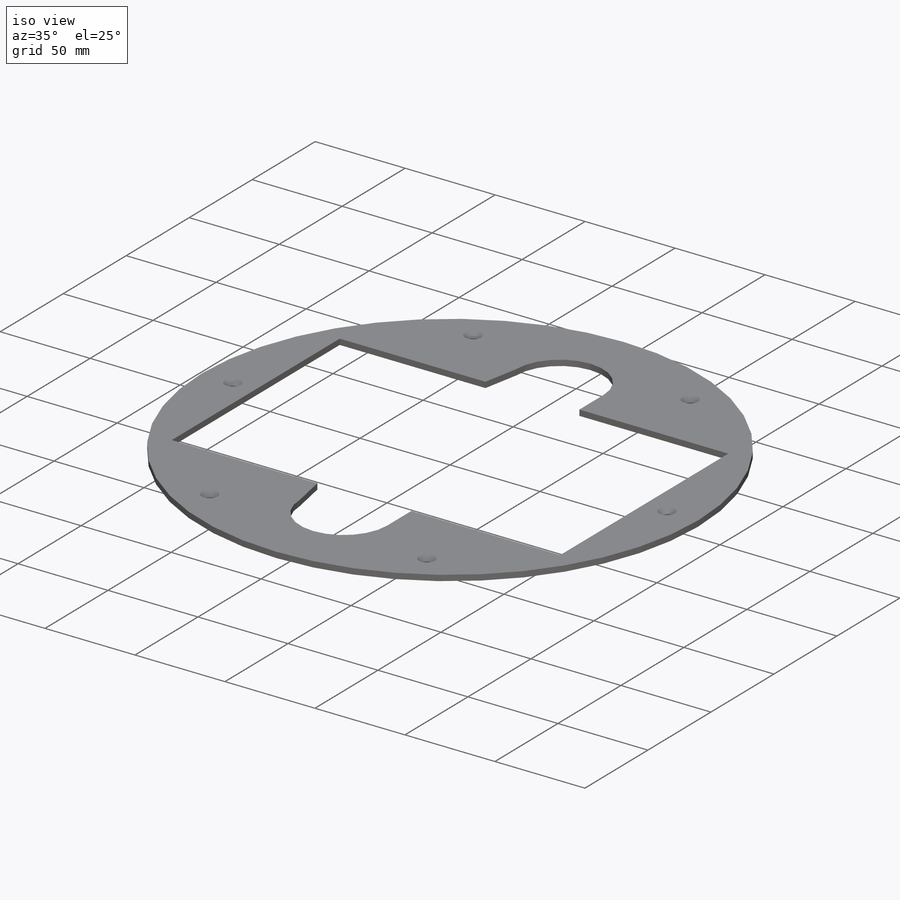
[diagram: iso view]
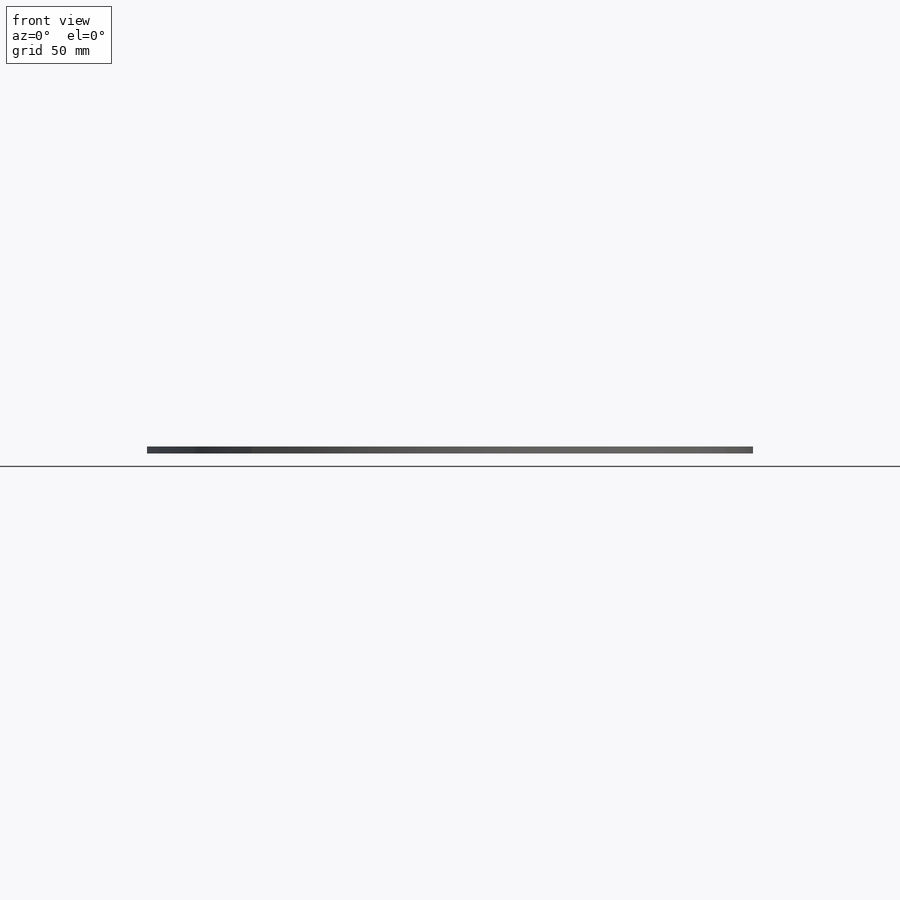
[diagram: front view]
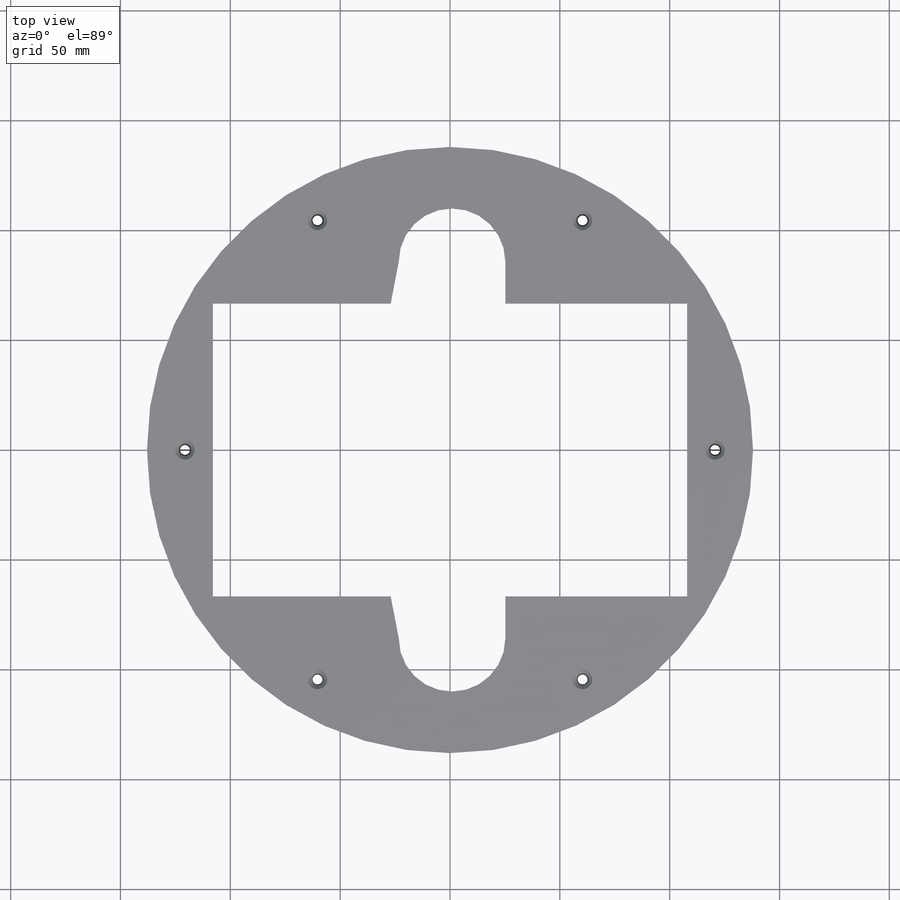
[diagram: top view]
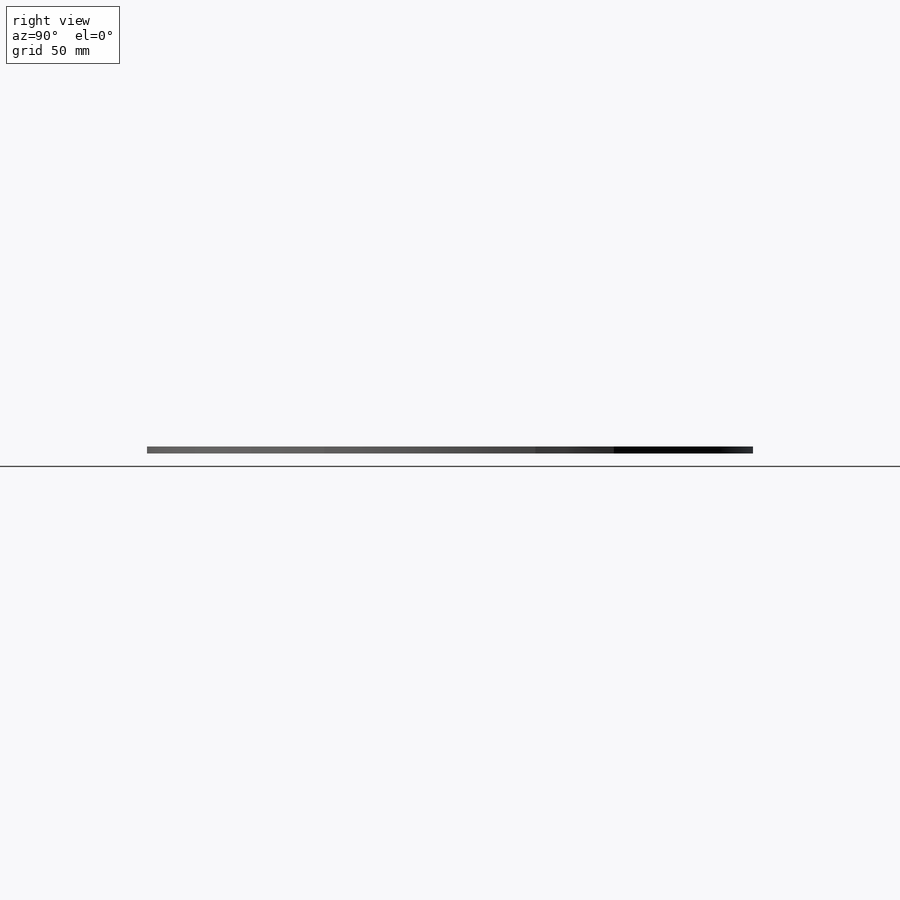
[diagram: right view]
SOLIDWORKS PART (.sldprt)
format: sldprt  version: not decoded by parser v0  size: 216,576 bytes
history: native  units: mm
features: sketch x5, cut_extrude x2, material x1, extrude x1, hole x1, pattern_circular x1 (+16 scaffold rows collapsed)
feature tree (27):
  scaffold x16  (default folders/planes/origin — collapsed)
  material  "Material <not specified>"
  sketch  "Sketch1"  dims[c1.D3=~250.483153mm c1.D1=215.9mm c1.D2=127.0mm c2.D3=12.7mm]
  extrude  "Extrude1"  Depth=3.175mm
  sketch  "Sketch3"  dims[D3=53.975mm D1=215.9mm D2=133.35mm D4=26.9875mm]
  cut_extrude  "Extrude3"  [1 undecoded]
  sketch  "Sketch4"  dims[D2=3.175mm D1=120.65mm]
  cut_extrude  "Extrude4"  [1 undecoded]
  hole  "CSK for #8 Flat Head Socket Cap Screw1"  Diameter=4.4958mm Depth=3.175mm
  sketch  "3DSketch1"
  sketch  "Sketch5"  dims[hole-wizard template sketch: 55 standard entries collapsed; hole parameters kept: c17.Thru Hole Depth=3.175mm c17.Near C'Sink Dia.=8.89mm c17.D4=~3.666174mm c17.Near C'Sink Angle=82.0deg]
  pattern_circular  "CirPattern1"  Count=6 Angle=360deg
decode coverage: 7 of 10 modeling features carry decoded parameters
note: ~ marks probable driven/reference dimensions
note: 2 parameter values undecoded
note: suppression state not decoded; provenance and decode notes live in map.json
